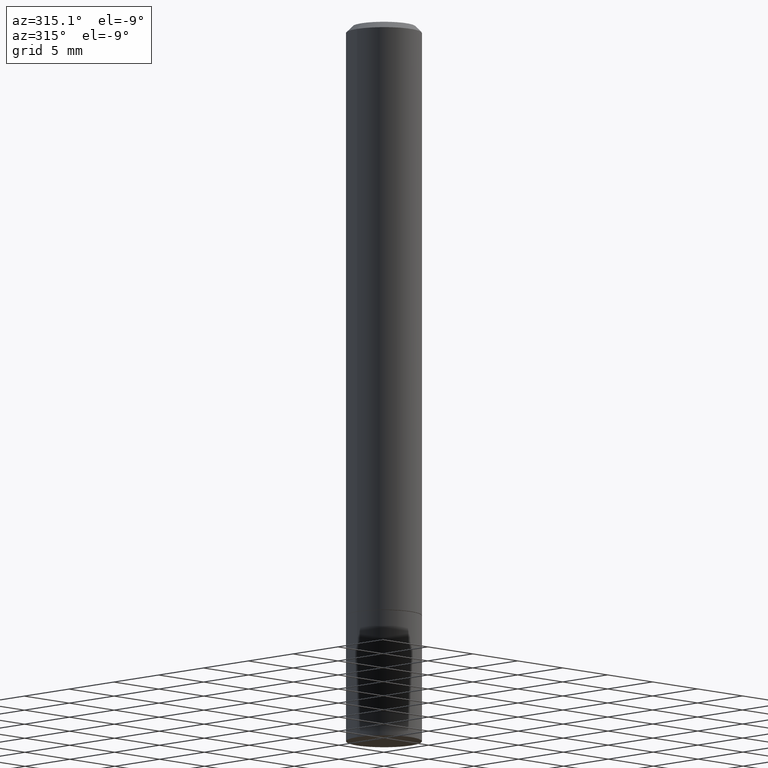
[diagram: clean part render]
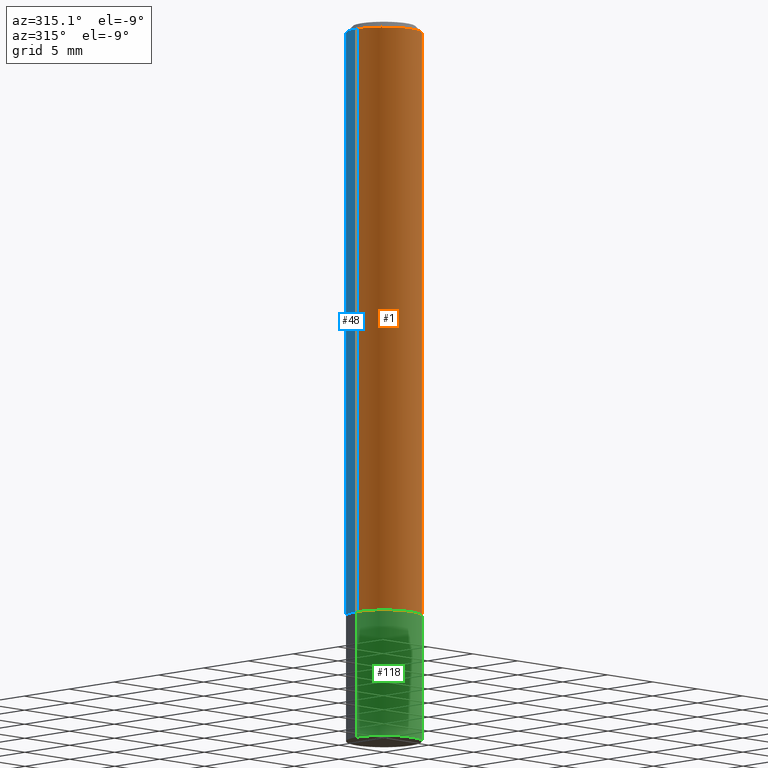
[diagram: same view with three faces highlighted in distinct colors, each labeled with its STEP entity id]
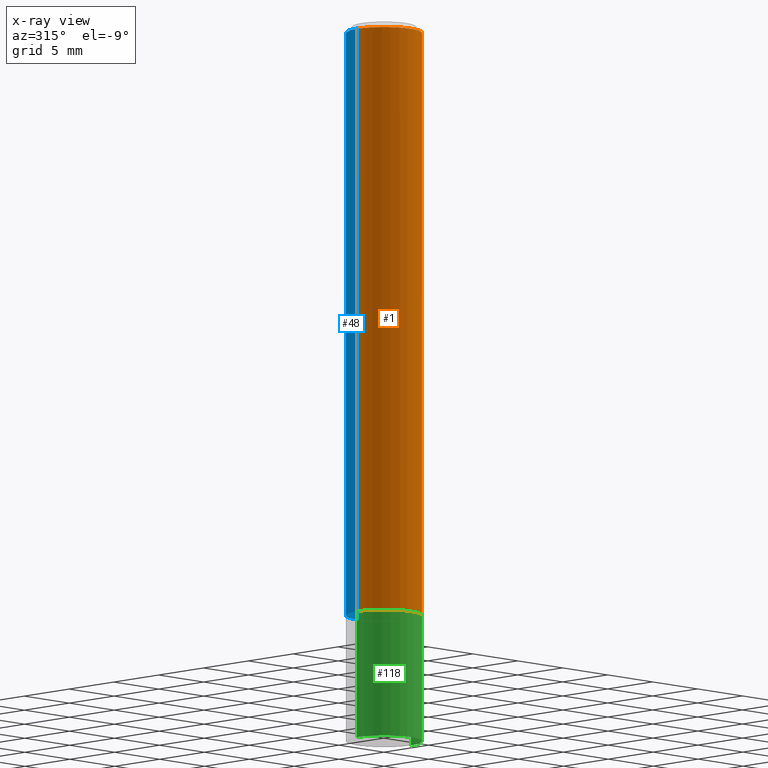
[diagram: x-ray of the same camera — body ghosted, the three highlighted faces saturated]
A machine part, auxiliary view with three faces highlighted in distinct colors.
The next image is the same camera in x-ray (body ghosted, the three faces saturated) — at least one of them is partly hidden behind the body in this view.
Their STEP definitions:

[orange] entity #1 — the highlighted cylindrical surface (partial cylindrical patch) has radius 2.9997 mm, axis along (-0, 0, 1).
#1 = ADVANCED_FACE ( 'NONE', ( #284 ), #76, .T. ) ;
#9 = VERTEX_POINT ( 'NONE', #314 ) ;
#11 = DIRECTION ( 'NONE',  ( 1.000000000000000000, -6.982962677686266711E-15, 0.000000000000000000 ) ) ;
#12 = VECTOR ( 'NONE', #137, 39.37007874015748143 ) ;
#18 = VERTEX_POINT ( 'NONE', #31 ) ;
#23 = AXIS2_PLACEMENT_3D ( 'NONE', #234, #258, #28 ) ;
#28 = DIRECTION ( 'NONE',  ( 1.000000000000000000, -6.982962677686266711E-15, 4.876176775795935232E-29 ) ) ;
#31 = CARTESIAN_POINT ( 'NONE',  ( 0.1180999999999997607, -8.800544403136790625E-16, -0.01999999999999999001 ) ) ;
#38 = DIRECTION ( 'NONE',  ( -2.445468806185136597E-29, 3.491481338843145583E-15, 1.000000000000000000 ) ) ;
#53 = DIRECTION ( 'NONE',  ( -2.445468806185136877E-29, 3.491481338843145188E-15, 1.000000000000000000 ) ) ;
#76 = CYLINDRICAL_SURFACE ( 'NONE', #23, 0.1180999999999998856 ) ;
#77 = AXIS2_PLACEMENT_3D ( 'NONE', #254, #97, #257 ) ;
#86 = ORIENTED_EDGE ( 'NONE', *, *, #160, .F. ) ;
#97 = DIRECTION ( 'NONE',  ( -2.445468806185136597E-29, 3.491481338843145583E-15, 1.000000000000000000 ) ) ;
#119 = VERTEX_POINT ( 'NONE', #212 ) ;
#130 = CARTESIAN_POINT ( 'NONE',  ( 0.1180999999999999966, -7.281833480291261254E-15, -1.849399999999999933 ) ) ;
#137 = DIRECTION ( 'NONE',  ( -2.445468806185136877E-29, 3.491481338843145188E-15, 1.000000000000000000 ) ) ;
#160 = EDGE_CURVE ( 'NONE', #119, #9, #222, .T. ) ;
#170 = VECTOR ( 'NONE', #53, 39.37007874015748143 ) ;
#175 = EDGE_LOOP ( 'NONE', ( #86, #343, #198, #213 ) ) ;
#190 = CARTESIAN_POINT ( 'NONE',  ( -0.1180999999999998856, 8.391509709326775068E-16, -5.809262341591038179E-30 ) ) ;
#198 = ORIENTED_EDGE ( 'NONE', *, *, #285, .T. ) ;
#209 = EDGE_CURVE ( 'NONE', #9, #18, #242, .T. ) ;
#212 = CARTESIAN_POINT ( 'NONE',  ( -0.1181000000000000105, -2.424336636484006398E-15, -1.849399999999999933 ) ) ;
#213 = ORIENTED_EDGE ( 'NONE', *, *, #209, .F. ) ;
#222 = LINE ( 'NONE', #190, #170 ) ;
#234 = CARTESIAN_POINT ( 'NONE',  ( 0.000000000000000000, 0.000000000000000000, 0.000000000000000000 ) ) ;
#240 = AXIS2_PLACEMENT_3D ( 'NONE', #328, #38, #11 ) ;
#242 = CIRCLE ( 'NONE', #240, 0.1180999999999997607 ) ;
#243 = CIRCLE ( 'NONE', #77, 0.1180999999999999966 ) ;
#254 = CARTESIAN_POINT ( 'NONE',  ( 4.522650010158791791E-29, -6.457145588056512991E-15, -1.849399999999999933 ) ) ;
#257 = DIRECTION ( 'NONE',  ( 1.000000000000000000, -6.982962677686265133E-15, 0.000000000000000000 ) ) ;
#258 = DIRECTION ( 'NONE',  ( -2.445468806185136597E-29, 3.491481338843145583E-15, 1.000000000000000000 ) ) ;
#261 = EDGE_CURVE ( 'NONE', #119, #316, #243, .T. ) ;
#281 = LINE ( 'NONE', #362, #12 ) ;
#284 = FACE_OUTER_BOUND ( 'NONE', #175, .T. ) ;
#285 = EDGE_CURVE ( 'NONE', #316, #18, #281, .T. ) ;
#314 = CARTESIAN_POINT ( 'NONE',  ( -0.1180999999999997607, 7.548582654578835839E-16, -0.01999999999999999001 ) ) ;
#316 = VERTEX_POINT ( 'NONE', #130 ) ;
#328 = CARTESIAN_POINT ( 'NONE',  ( 4.890937612370270531E-31, -6.982962677686289144E-17, -0.01999999999999999001 ) ) ;
#343 = ORIENTED_EDGE ( 'NONE', *, *, #261, .T. ) ;
#362 = CARTESIAN_POINT ( 'NONE',  ( 0.1180999999999998856, -8.246878922347472765E-16, 5.758764772214994135E-30 ) ) ;

[blue] entity #48 — the highlighted cylindrical surface (partial cylindrical patch) has radius 2.9997 mm, axis along (-0, 0, 1).
#2 = DIRECTION ( 'NONE',  ( 1.000000000000000000, -6.982962677686266711E-15, 4.876176775795935232E-29 ) ) ;
#9 = VERTEX_POINT ( 'NONE', #314 ) ;
#12 = VECTOR ( 'NONE', #137, 39.37007874015748143 ) ;
#18 = VERTEX_POINT ( 'NONE', #31 ) ;
#26 = FACE_OUTER_BOUND ( 'NONE', #133, .T. ) ;
#31 = CARTESIAN_POINT ( 'NONE',  ( 0.1180999999999997607, -8.800544403136790625E-16, -0.01999999999999999001 ) ) ;
#42 = CARTESIAN_POINT ( 'NONE',  ( 4.522650010158791791E-29, -6.457145588056512991E-15, -1.849399999999999933 ) ) ;
#48 = ADVANCED_FACE ( 'NONE', ( #26 ), #113, .T. ) ;
#53 = DIRECTION ( 'NONE',  ( -2.445468806185136877E-29, 3.491481338843145188E-15, 1.000000000000000000 ) ) ;
#60 = AXIS2_PLACEMENT_3D ( 'NONE', #288, #205, #2 ) ;
#68 = DIRECTION ( 'NONE',  ( 1.000000000000000000, -6.982962677686265133E-15, 0.000000000000000000 ) ) ;
#102 = AXIS2_PLACEMENT_3D ( 'NONE', #42, #228, #68 ) ;
#107 = ORIENTED_EDGE ( 'NONE', *, *, #219, .F. ) ;
#113 = CYLINDRICAL_SURFACE ( 'NONE', #60, 0.1180999999999998856 ) ;
#119 = VERTEX_POINT ( 'NONE', #212 ) ;
#130 = CARTESIAN_POINT ( 'NONE',  ( 0.1180999999999999966, -7.281833480291261254E-15, -1.849399999999999933 ) ) ;
#133 = EDGE_LOOP ( 'NONE', ( #194, #268, #107, #321 ) ) ;
#137 = DIRECTION ( 'NONE',  ( -2.445468806185136877E-29, 3.491481338843145188E-15, 1.000000000000000000 ) ) ;
#160 = EDGE_CURVE ( 'NONE', #119, #9, #222, .T. ) ;
#170 = VECTOR ( 'NONE', #53, 39.37007874015748143 ) ;
#178 = CIRCLE ( 'NONE', #102, 0.1180999999999999966 ) ;
#182 = DIRECTION ( 'NONE',  ( -2.445468806185136597E-29, 3.491481338843145583E-15, 1.000000000000000000 ) ) ;
#190 = CARTESIAN_POINT ( 'NONE',  ( -0.1180999999999998856, 8.391509709326775068E-16, -5.809262341591038179E-30 ) ) ;
#194 = ORIENTED_EDGE ( 'NONE', *, *, #347, .T. ) ;
#205 = DIRECTION ( 'NONE',  ( -2.445468806185136597E-29, 3.491481338843145583E-15, 1.000000000000000000 ) ) ;
#212 = CARTESIAN_POINT ( 'NONE',  ( -0.1181000000000000105, -2.424336636484006398E-15, -1.849399999999999933 ) ) ;
#219 = EDGE_CURVE ( 'NONE', #18, #9, #297, .T. ) ;
#222 = LINE ( 'NONE', #190, #170 ) ;
#225 = AXIS2_PLACEMENT_3D ( 'NONE', #278, #182, #295 ) ;
#228 = DIRECTION ( 'NONE',  ( -2.445468806185136597E-29, 3.491481338843145583E-15, 1.000000000000000000 ) ) ;
#268 = ORIENTED_EDGE ( 'NONE', *, *, #160, .T. ) ;
#278 = CARTESIAN_POINT ( 'NONE',  ( 4.890937612370270531E-31, -6.982962677686289144E-17, -0.01999999999999999001 ) ) ;
#281 = LINE ( 'NONE', #362, #12 ) ;
#285 = EDGE_CURVE ( 'NONE', #316, #18, #281, .T. ) ;
#288 = CARTESIAN_POINT ( 'NONE',  ( 0.000000000000000000, 0.000000000000000000, 0.000000000000000000 ) ) ;
#295 = DIRECTION ( 'NONE',  ( 1.000000000000000000, -6.982962677686266711E-15, 0.000000000000000000 ) ) ;
#297 = CIRCLE ( 'NONE', #225, 0.1180999999999997607 ) ;
#314 = CARTESIAN_POINT ( 'NONE',  ( -0.1180999999999997607, 7.548582654578835839E-16, -0.01999999999999999001 ) ) ;
#316 = VERTEX_POINT ( 'NONE', #130 ) ;
#321 = ORIENTED_EDGE ( 'NONE', *, *, #285, .F. ) ;
#347 = EDGE_CURVE ( 'NONE', #316, #119, #178, .T. ) ;
#362 = CARTESIAN_POINT ( 'NONE',  ( 0.1180999999999998856, -8.246878922347472765E-16, 5.758764772214994135E-30 ) ) ;

[green] entity #118 — the highlighted cylindrical surface (partial cylindrical patch) has radius 2.9997 mm, axis along (-0, 0, 1).
#4 = EDGE_LOOP ( 'NONE', ( #292, #150, #159, #318 ) ) ;
#7 = CARTESIAN_POINT ( 'NONE',  ( 0.1180999999999999966, -8.246878922347480654E-16, 5.758764772215000440E-30 ) ) ;
#15 = CARTESIAN_POINT ( 'NONE',  ( 0.1180999999999999966, -7.285324961630104261E-15, -1.850400000000000045 ) ) ;
#20 = EDGE_CURVE ( 'NONE', #122, #223, #89, .T. ) ;
#36 = DIRECTION ( 'NONE',  ( -2.445468806185136597E-29, 3.491481338843145583E-15, 1.000000000000000000 ) ) ;
#37 = EDGE_CURVE ( 'NONE', #57, #223, #105, .T. ) ;
#39 = CARTESIAN_POINT ( 'NONE',  ( 0.000000000000000000, 0.000000000000000000, 0.000000000000000000 ) ) ;
#47 = CARTESIAN_POINT ( 'NONE',  ( 0.1180999999999999966, -8.659921164732650602E-15, -2.244099999999999984 ) ) ;
#52 = FACE_OUTER_BOUND ( 'NONE', #4, .T. ) ;
#57 = VERTEX_POINT ( 'NONE', #47 ) ;
#66 = LINE ( 'NONE', #94, #123 ) ;
#83 = VECTOR ( 'NONE', #259, 39.37007874015748143 ) ;
#88 = DIRECTION ( 'NONE',  ( -2.445468806185136597E-29, 3.491481338843145583E-15, 1.000000000000000000 ) ) ;
#89 = CIRCLE ( 'NONE', #216, 0.1180999999999999966 ) ;
#94 = CARTESIAN_POINT ( 'NONE',  ( -0.1180999999999999966, 8.391509709326782957E-16, -5.809262341591043784E-30 ) ) ;
#105 = LINE ( 'NONE', #7, #83 ) ;
#109 = AXIS2_PLACEMENT_3D ( 'NONE', #117, #36, #325 ) ;
#117 = CARTESIAN_POINT ( 'NONE',  ( 5.487876547960064752E-29, -7.835233272497902340E-15, -2.244099999999999984 ) ) ;
#118 = ADVANCED_FACE ( 'NONE', ( #52 ), #299, .T. ) ;
#122 = VERTEX_POINT ( 'NONE', #248 ) ;
#123 = VECTOR ( 'NONE', #355, 39.37007874015748143 ) ;
#127 = EDGE_CURVE ( 'NONE', #237, #122, #66, .T. ) ;
#149 = DIRECTION ( 'NONE',  ( -2.445468806185136597E-29, 3.491481338843145583E-15, 1.000000000000000000 ) ) ;
#150 = ORIENTED_EDGE ( 'NONE', *, *, #154, .T. ) ;
#154 = EDGE_CURVE ( 'NONE', #237, #57, #326, .T. ) ;
#159 = ORIENTED_EDGE ( 'NONE', *, *, #37, .T. ) ;
#187 = CARTESIAN_POINT ( 'NONE',  ( -0.1180999999999999966, -6.308784200013950972E-15, -2.244099999999999984 ) ) ;
#203 = AXIS2_PLACEMENT_3D ( 'NONE', #39, #88, #354 ) ;
#216 = AXIS2_PLACEMENT_3D ( 'NONE', #365, #149, #262 ) ;
#223 = VERTEX_POINT ( 'NONE', #15 ) ;
#237 = VERTEX_POINT ( 'NONE', #187 ) ;
#248 = CARTESIAN_POINT ( 'NONE',  ( -0.1180999999999999966, -6.308784200013950972E-15, -1.850400000000000045 ) ) ;
#259 = DIRECTION ( 'NONE',  ( -2.445468806185136877E-29, 3.491481338843145188E-15, 1.000000000000000000 ) ) ;
#262 = DIRECTION ( 'NONE',  ( 1.000000000000000000, -6.982962677686265133E-15, 0.000000000000000000 ) ) ;
#292 = ORIENTED_EDGE ( 'NONE', *, *, #127, .F. ) ;
#299 = CYLINDRICAL_SURFACE ( 'NONE', #203, 0.1180999999999999966 ) ;
#318 = ORIENTED_EDGE ( 'NONE', *, *, #20, .F. ) ;
#325 = DIRECTION ( 'NONE',  ( 1.000000000000000000, -6.982962677686265133E-15, 0.000000000000000000 ) ) ;
#326 = CIRCLE ( 'NONE', #109, 0.1180999999999999966 ) ;
#354 = DIRECTION ( 'NONE',  ( 1.000000000000000000, -6.982962677686266711E-15, 4.876176775795936353E-29 ) ) ;
#355 = DIRECTION ( 'NONE',  ( -2.445468806185136877E-29, 3.491481338843145188E-15, 1.000000000000000000 ) ) ;
#365 = CARTESIAN_POINT ( 'NONE',  ( 4.525095478964976833E-29, -6.460637069395356787E-15, -1.850400000000000045 ) ) ;